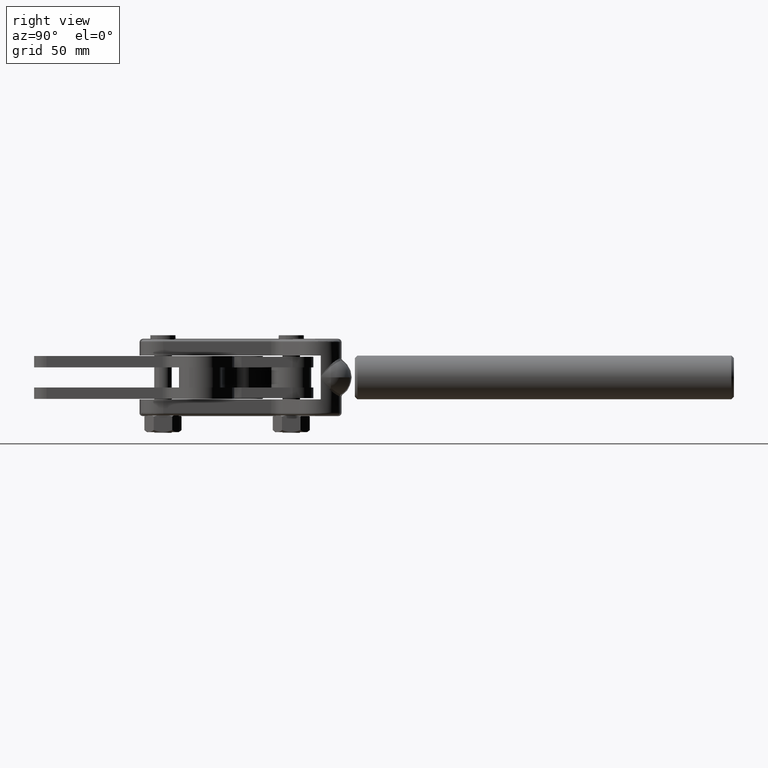
[diagram: clean part render]
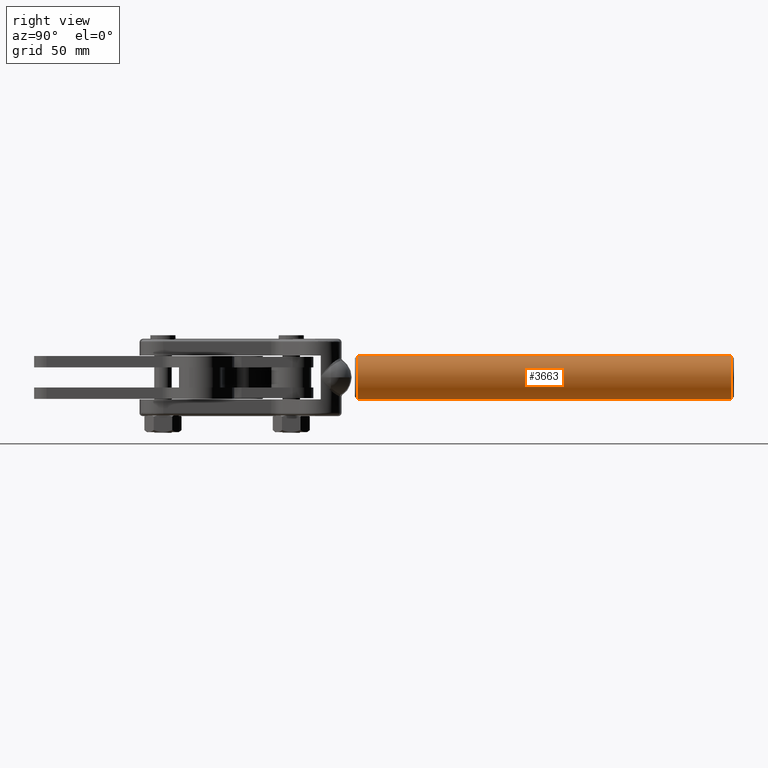
[diagram: same view with one face highlighted and labeled with its STEP entity id]
A machine part, right view. The second image highlights one B-rep face of the part: STEP entity #3663.
In plain terms, the highlighted cylindrical surface (edge-blend (fillet) strip) has radius 8.65 mm, axis along (-0, -1, -0).
Its self-contained STEP definition (entity closure, byte-faithful):
#117 = LINE ( 'NONE', #3606, #2260 ) ;
#240 = CIRCLE ( 'NONE', #6693, 8.649999999999998600 ) ;
#600 = DIRECTION ( 'NONE',  ( 0.0000000000000000000, 0.0000000000000000000, 1.000000000000000000 ) ) ;
#1054 = VERTEX_POINT ( 'NONE', #10233 ) ;
#1334 = CARTESIAN_POINT ( 'NONE',  ( 0.0000000000000000000, 150.0000000000000000, -8.649999999999998600 ) ) ;
#1696 = DIRECTION ( 'NONE',  ( -0.0000000000000000000, -1.000000000000000000, -0.0000000000000000000 ) ) ;
#2095 = VERTEX_POINT ( 'NONE', #8486 ) ;
#2160 = VECTOR ( 'NONE', #1696, 1000.000000000000000 ) ;
#2260 = VECTOR ( 'NONE', #9733, 1000.000000000000000 ) ;
#3305 = LINE ( 'NONE', #1334, #2160 ) ;
#3606 = CARTESIAN_POINT ( 'NONE',  ( 1.059319481262460400E-015, 150.0000000000000000, 8.649999999999998600 ) ) ;
#3663 = ADVANCED_FACE ( 'NONE', ( #6887 ), #6040, .T. ) ;
#4816 = ORIENTED_EDGE ( 'NONE', *, *, #5390, .T. ) ;
#5038 = CARTESIAN_POINT ( 'NONE',  ( 0.0000000000000000000, 149.0000000000000000, -8.649999999999998600 ) ) ;
#5390 = EDGE_CURVE ( 'NONE', #2095, #11411, #8087, .T. ) ;
#5458 = CARTESIAN_POINT ( 'NONE',  ( 0.0000000000000000000, 1.000000000000000900, -8.649999999999998600 ) ) ;
#5543 = EDGE_CURVE ( 'NONE', #8798, #11411, #3305, .T. ) ;
#6040 = CYLINDRICAL_SURFACE ( 'NONE', #10867, 8.649999999999998600 ) ;
#6257 = DIRECTION ( 'NONE',  ( -0.0000000000000000000, -1.000000000000000000, -0.0000000000000000000 ) ) ;
#6272 = EDGE_LOOP ( 'NONE', ( #7148, #8042, #4816, #6635 ) ) ;
#6635 = ORIENTED_EDGE ( 'NONE', *, *, #5543, .F. ) ;
#6693 = AXIS2_PLACEMENT_3D ( 'NONE', #11530, #11473, #11379 ) ;
#6887 = FACE_OUTER_BOUND ( 'NONE', #6272, .T. ) ;
#7083 = AXIS2_PLACEMENT_3D ( 'NONE', #7599, #7935, #600 ) ;
#7148 = ORIENTED_EDGE ( 'NONE', *, *, #10823, .T. ) ;
#7399 = DIRECTION ( 'NONE',  ( 0.0000000000000000000, 0.0000000000000000000, -1.000000000000000000 ) ) ;
#7599 = CARTESIAN_POINT ( 'NONE',  ( 0.0000000000000000000, 1.000000000000000900, 0.0000000000000000000 ) ) ;
#7935 = DIRECTION ( 'NONE',  ( -0.0000000000000000000, 1.000000000000000000, -0.0000000000000000000 ) ) ;
#8042 = ORIENTED_EDGE ( 'NONE', *, *, #8105, .T. ) ;
#8087 = CIRCLE ( 'NONE', #7083, 8.649999999999998600 ) ;
#8105 = EDGE_CURVE ( 'NONE', #1054, #2095, #117, .T. ) ;
#8486 = CARTESIAN_POINT ( 'NONE',  ( 1.059319481262460400E-015, 1.000000000000000900, 8.649999999999998600 ) ) ;
#8798 = VERTEX_POINT ( 'NONE', #5038 ) ;
#9733 = DIRECTION ( 'NONE',  ( -0.0000000000000000000, -1.000000000000000000, -0.0000000000000000000 ) ) ;
#10233 = CARTESIAN_POINT ( 'NONE',  ( 1.059319481262460400E-015, 149.0000000000000000, 8.649999999999998600 ) ) ;
#10823 = EDGE_CURVE ( 'NONE', #8798, #1054, #240, .T. ) ;
#10867 = AXIS2_PLACEMENT_3D ( 'NONE', #11165, #6257, #7399 ) ;
#11165 = CARTESIAN_POINT ( 'NONE',  ( 0.0000000000000000000, 150.0000000000000000, 0.0000000000000000000 ) ) ;
#11379 = DIRECTION ( 'NONE',  ( 0.0000000000000000000, 0.0000000000000000000, 1.000000000000000000 ) ) ;
#11411 = VERTEX_POINT ( 'NONE', #5458 ) ;
#11473 = DIRECTION ( 'NONE',  ( 0.0000000000000000000, -1.000000000000000000, 0.0000000000000000000 ) ) ;
#11530 = CARTESIAN_POINT ( 'NONE',  ( 0.0000000000000000000, 149.0000000000000000, 0.0000000000000000000 ) ) ;